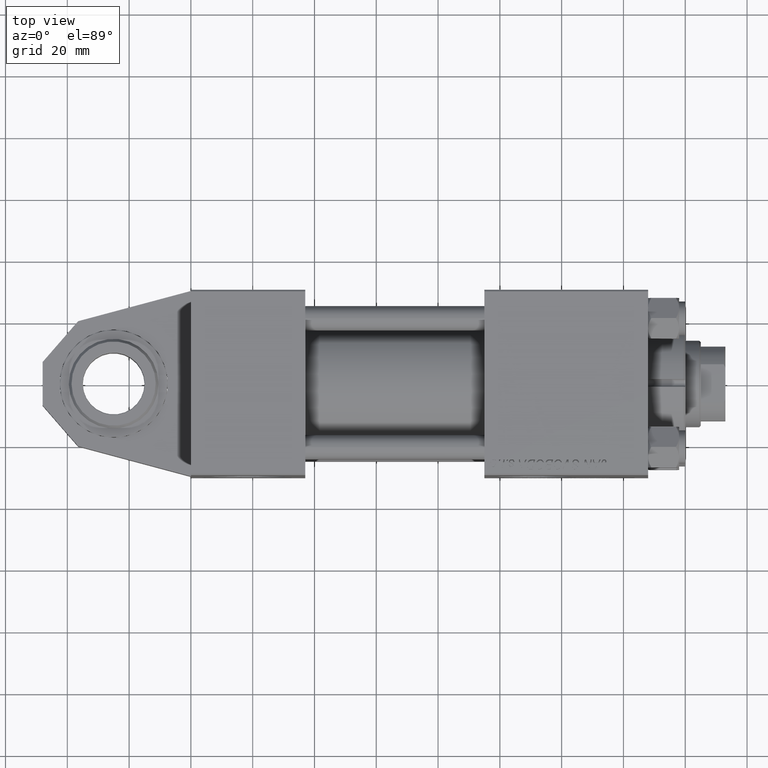
[diagram: clean part render]
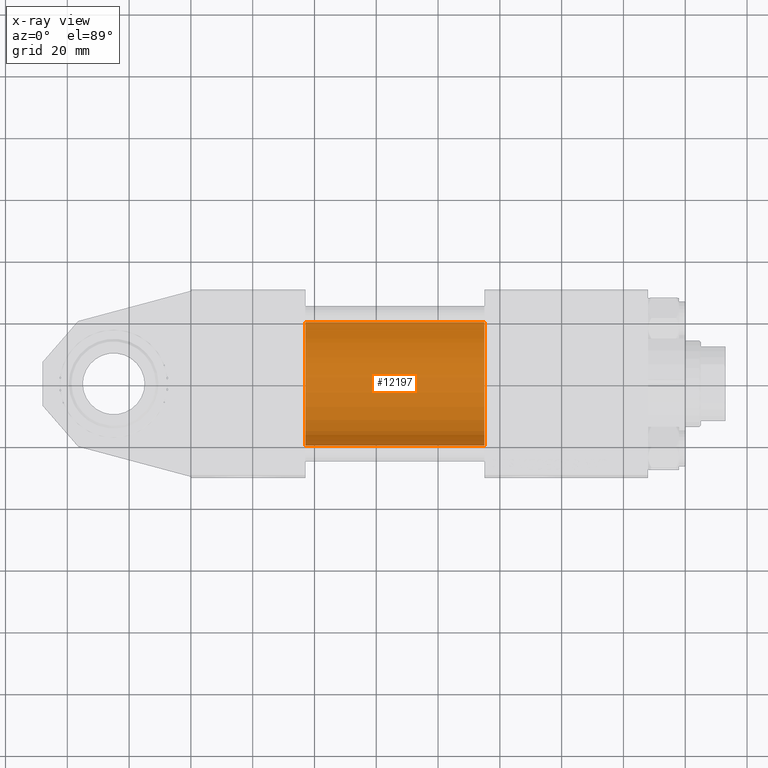
[diagram: x-ray — body ghosted, one internal face saturated and labeled with its STEP entity id]
A machine part, top view, then the same camera in x-ray: the body is ghosted and one INTERNAL B-rep face — a face not visible from any outside direction — is saturated and labeled: STEP entity #12197.
In plain terms, the highlighted cylindrical surface (partial cylindrical patch) has radius 20 mm, axis along (-1, 0, -0).
Its self-contained STEP definition (entity closure, byte-faithful):
#101 = EDGE_CURVE ( 'NONE', #25818, #46257, #48503, .T. ) ;
#1454 = CYLINDRICAL_SURFACE ( 'NONE', #49715, 20.00000000000000000 ) ;
#3497 = EDGE_CURVE ( 'NONE', #46485, #24681, #5537, .T. ) ;
#4837 = CARTESIAN_POINT ( 'NONE',  ( 37.00000000000000000, -1.527916156705046464E-16, -20.00000000000000000 ) ) ;
#5537 = LINE ( 'NONE', #16976, #25169 ) ;
#6557 = ORIENTED_EDGE ( 'NONE', *, *, #40665, .F. ) ;
#6813 = ORIENTED_EDGE ( 'NONE', *, *, #3497, .F. ) ;
#10474 = DIRECTION ( 'NONE',  ( 1.000000000000000000, 0.000000000000000000, 0.000000000000000000 ) ) ;
#10834 = AXIS2_PLACEMENT_3D ( 'NONE', #50254, #26859, #27106 ) ;
#11268 = VECTOR ( 'NONE', #44673, 1000.000000000000000 ) ;
#12197 = ADVANCED_FACE ( 'NONE', ( #36306 ), #1454, .F. ) ;
#13923 = DIRECTION ( 'NONE',  ( -1.000000000000000000, -0.000000000000000000, -0.000000000000000000 ) ) ;
#16469 = CARTESIAN_POINT ( 'NONE',  ( 95.00000000000000000, -2.602085213965210642E-15, 0.000000000000000000 ) ) ;
#16976 = CARTESIAN_POINT ( 'NONE',  ( 95.00000000000000000, -2.602085213965210642E-15, 20.00000000000000000 ) ) ;
#19673 = AXIS2_PLACEMENT_3D ( 'NONE', #48648, #10474, #44571 ) ;
#20367 = ORIENTED_EDGE ( 'NONE', *, *, #101, .T. ) ;
#24681 = VERTEX_POINT ( 'NONE', #45032 ) ;
#25169 = VECTOR ( 'NONE', #13923, 1000.000000000000000 ) ;
#25818 = VERTEX_POINT ( 'NONE', #28483 ) ;
#26859 = DIRECTION ( 'NONE',  ( 1.000000000000000000, 0.000000000000000000, 0.000000000000000000 ) ) ;
#27106 = DIRECTION ( 'NONE',  ( 0.000000000000000000, 0.000000000000000000, -1.000000000000000000 ) ) ;
#28483 = CARTESIAN_POINT ( 'NONE',  ( 95.00000000000000000, -1.527916156705046464E-16, -20.00000000000000000 ) ) ;
#28682 = DIRECTION ( 'NONE',  ( 0.000000000000000000, 0.000000000000000000, 1.000000000000000000 ) ) ;
#35190 = CIRCLE ( 'NONE', #10834, 20.00000000000000000 ) ;
#36054 = DIRECTION ( 'NONE',  ( -1.000000000000000000, -0.000000000000000000, -0.000000000000000000 ) ) ;
#36306 = FACE_OUTER_BOUND ( 'NONE', #39622, .T. ) ;
#38625 = ORIENTED_EDGE ( 'NONE', *, *, #39250, .T. ) ;
#39250 = EDGE_CURVE ( 'NONE', #46485, #25818, #41614, .T. ) ;
#39622 = EDGE_LOOP ( 'NONE', ( #38625, #20367, #6557, #6813 ) ) ;
#40665 = EDGE_CURVE ( 'NONE', #24681, #46257, #35190, .T. ) ;
#41614 = CIRCLE ( 'NONE', #19673, 20.00000000000000000 ) ;
#43947 = CARTESIAN_POINT ( 'NONE',  ( 95.00000000000000000, -2.602085213965210642E-15, 20.00000000000000000 ) ) ;
#44171 = CARTESIAN_POINT ( 'NONE',  ( 95.00000000000000000, -1.527916156705046464E-16, -20.00000000000000000 ) ) ;
#44571 = DIRECTION ( 'NONE',  ( 0.000000000000000000, 0.000000000000000000, -1.000000000000000000 ) ) ;
#44673 = DIRECTION ( 'NONE',  ( -1.000000000000000000, -0.000000000000000000, -0.000000000000000000 ) ) ;
#45032 = CARTESIAN_POINT ( 'NONE',  ( 37.00000000000000000, -2.602085213965210642E-15, 20.00000000000000000 ) ) ;
#46257 = VERTEX_POINT ( 'NONE', #4837 ) ;
#46485 = VERTEX_POINT ( 'NONE', #43947 ) ;
#48503 = LINE ( 'NONE', #44171, #11268 ) ;
#48648 = CARTESIAN_POINT ( 'NONE',  ( 95.00000000000000000, -2.602085213965210642E-15, 0.000000000000000000 ) ) ;
#49715 = AXIS2_PLACEMENT_3D ( 'NONE', #16469, #36054, #28682 ) ;
#50254 = CARTESIAN_POINT ( 'NONE',  ( 37.00000000000000000, -2.602085213965210642E-15, 0.000000000000000000 ) ) ;